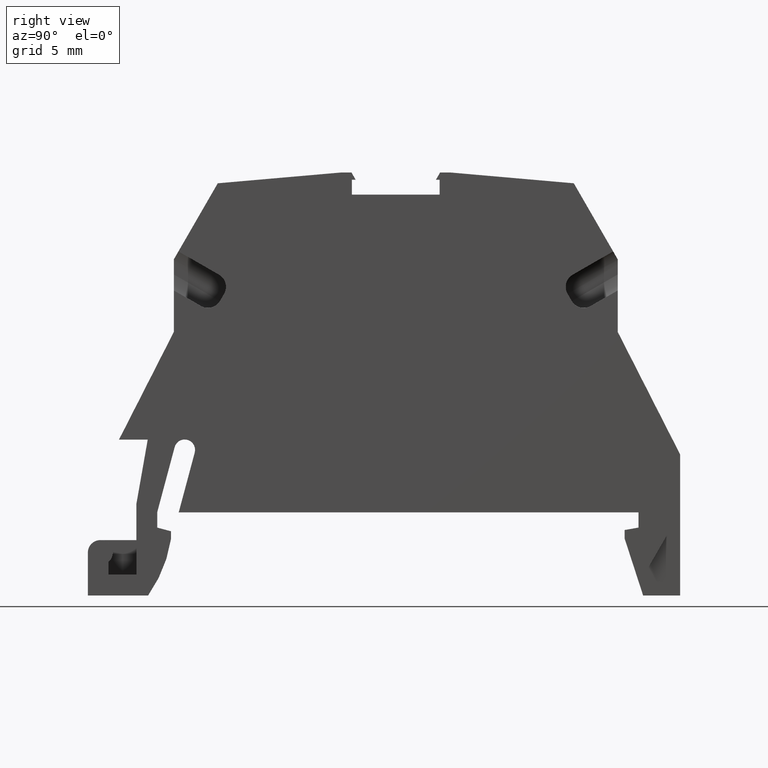
[diagram: clean part render]
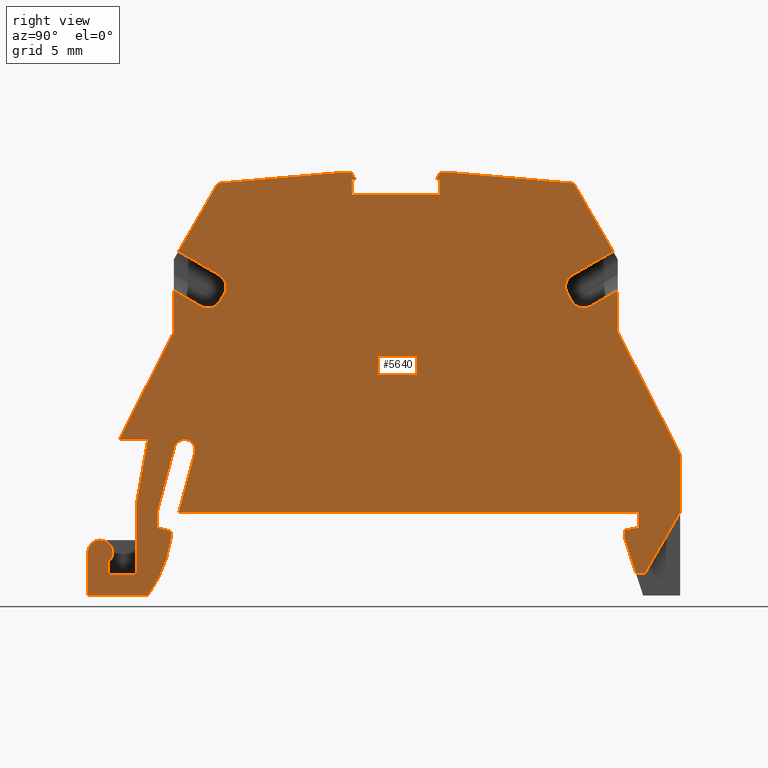
[diagram: same view with one face highlighted and labeled with its STEP entity id]
A machine part, right view. The second image highlights one B-rep face of the part: STEP entity #5640.
In plain terms, the highlighted planar face has unit normal (-1, 0, -0).
Its self-contained STEP definition (entity closure, byte-faithful):
#620=CARTESIAN_POINT('',(70.3110332415993,137.189784677558,
9.22499999999886));
#630=DIRECTION('',(0.984807753012208,0.17364817766693,
4.84387482353758E-13));
#640=VECTOR('',#630,1.);
#650=LINE('',#620,#640);
#660=CARTESIAN_POINT('',(81.2869033162164,139.125126708464,
9.22500000000426));
#670=VERTEX_POINT('',#660);
#680=CARTESIAN_POINT('',(85.9288839072414,139.943633130587,
9.22500000000655));
#690=VERTEX_POINT('',#680);
#700=EDGE_CURVE('',#670,#690,#650,.T.);
#1590=CARTESIAN_POINT('',(107.308864827748,141.583137130607,
9.22500000001767));
#1600=DIRECTION('',(-5.03237389910914E-13,2.85631559954056E-25,1.));
#1610=DIRECTION('',(2.5507373990763E-13,-1.,4.13994203059987E-25));
#1620=AXIS2_PLACEMENT_3D('',#1590,#1600,#1610);
#1630=PLANE('',#1620);
#1640=CARTESIAN_POINT('',(81.2869033162158,141.196541457125,
9.22500000000424));
#1650=DIRECTION('',(2.54685161849011E-13,-1.,9.71445146589593E-15));
#1660=VECTOR('',#1650,1.);
#1670=LINE('',#1640,#1660);
#1680=CARTESIAN_POINT('',(81.2869033162158,141.196541457125,
9.22500000000424));
#1690=VERTEX_POINT('',#1680);
#1700=EDGE_CURVE('',#1690,#670,#1670,.T.);
#1710=ORIENTED_EDGE('',*,*,#1700,.T.);
#1720=CARTESIAN_POINT('',(70.8468876131945,135.877087763314,
9.22499999999932));
#1730=DIRECTION('',(-0.891006524188349,-0.453990499739584,
-4.4838779762601E-13));
#1740=VECTOR('',#1730,1.);
#1750=LINE('',#1720,#1740);
#1760=CARTESIAN_POINT('',(73.5288839072462,137.243633130583,
9.22500000000045));
#1770=VERTEX_POINT('',#1760);
#1780=EDGE_CURVE('',#1690,#1770,#1750,.T.);
#1790=ORIENTED_EDGE('',*,*,#1780,.F.);
#1800=CARTESIAN_POINT('',(70.2799438227505,137.243633130582,
9.22499999999885));
#1810=DIRECTION('',(-1.,-1.94233518158171E-13,-4.93578479058867E-13));
#1820=VECTOR('',#1810,1.);
#1830=LINE('',#1800,#1820);
#1840=CARTESIAN_POINT('',(70.5370254785312,137.243633130585,
9.22499999999897));
#1850=VERTEX_POINT('',#1840);
#1860=EDGE_CURVE('',#1770,#1850,#1830,.T.);
#1870=ORIENTED_EDGE('',*,*,#1860,.F.);
#1880=CARTESIAN_POINT('',(79.0646726767555,122.473314914267,
9.22500000000333));
#1890=DIRECTION('',(-0.500000000000727,0.866025403784019,
-2.55202725495088E-13));
#1900=VECTOR('',#1890,1.);
#1910=LINE('',#1880,#1900);
#1920=CARTESIAN_POINT('',(71.6664964366499,135.287332045452,
9.22499999999943));
#1930=VERTEX_POINT('',#1920);
#1940=EDGE_CURVE('',#1930,#1850,#1910,.T.);
#1950=ORIENTED_EDGE('',*,*,#1940,.T.);
#1960=CARTESIAN_POINT('',(70.8004710328659,134.787332045451,
9.22499999999913));
#1970=DIRECTION('',(-5.25524068706296E-13,3.14582771914244E-13,1.));
#1980=DIRECTION('',(1.41808786935371E-12,-1.,3.1458277191499E-13));
#1990=AXIS2_PLACEMENT_3D('',#1960,#1970,#1980);
#2000=CIRCLE('',#1990,1.);
#2010=CARTESIAN_POINT('',(71.3004710328672,133.921306641668,
9.22499999999938));
#2020=VERTEX_POINT('',#2010);
#2030=EDGE_CURVE('',#2020,#1930,#2000,.T.);
#2040=ORIENTED_EDGE('',*,*,#2030,.T.);
#2050=CARTESIAN_POINT('',(71.9736851948147,134.309987019291,
9.22499999999971));
#2060=DIRECTION('',(0.866025403784127,0.50000000000054,
4.22595183855232E-13));
#2070=VECTOR('',#2060,1.);
#2080=LINE('',#2050,#2070);
#2090=CARTESIAN_POINT('',(70.7808557905968,133.621306641667,
9.22499999999941));
#2100=VERTEX_POINT('',#2090);
#2110=EDGE_CURVE('',#2100,#2020,#2080,.T.);
#2120=ORIENTED_EDGE('',*,*,#2110,.T.);
#2130=CARTESIAN_POINT('',(70.2808557905961,134.487332045451,
9.22499999999888));
#2140=DIRECTION('',(5.25524068706296E-13,-3.14582771914244E-13,-1.));
#2150=DIRECTION('',(0.866025403784544,-0.499999999999817,
6.12408579756932E-13));
#2160=AXIS2_PLACEMENT_3D('',#2130,#2140,#2150);
#2170=CIRCLE('',#2160,1.);
#2180=CARTESIAN_POINT('',(69.414830386812,133.987332045451,
9.22499999999858));
#2190=VERTEX_POINT('',#2180);
#2200=EDGE_CURVE('',#2100,#2190,#2170,.T.);
#2210=ORIENTED_EDGE('',*,*,#2200,.F.);
#2220=CARTESIAN_POINT('',(76.813006626917,121.173314914265,
9.22500000000223));
#2230=DIRECTION('',(0.500000000000727,-0.866025403784019,
2.55202725495088E-13));
#2240=VECTOR('',#2230,1.);
#2250=LINE('',#2220,#2240);
#2260=CARTESIAN_POINT('',(67.7248303868096,136.914497910241,
9.22499999999759));
#2270=VERTEX_POINT('',#2260);
#2280=EDGE_CURVE('',#2270,#2190,#2250,.T.);
#2290=ORIENTED_EDGE('',*,*,#2280,.T.);
#2300=CARTESIAN_POINT('',(69.7836851948122,138.103178287864,
9.22499999999859));
#2310=DIRECTION('',(-0.866025403783959,-0.500000000000831,
-4.22595183855146E-13));
#2320=VECTOR('',#2310,1.);
#2330=LINE('',#2300,#2320);
#2340=CARTESIAN_POINT('',(62.8104688544793,134.077189956647,
9.22499999999528));
#2350=VERTEX_POINT('',#2340);
#2360=EDGE_CURVE('',#2270,#2350,#2330,.T.);
#2370=ORIENTED_EDGE('',*,*,#2360,.F.);
#2380=CARTESIAN_POINT('',(60.876550100461,111.97239744877,
9.22499999999445));
#2390=DIRECTION('',(0.0871557427470437,0.996194698091799,
3.32848158768877E-14));
#2400=VECTOR('',#2390,1.);
#2410=LINE('',#2380,#2400);
#2420=CARTESIAN_POINT('',(62.0288839072392,125.143633130578,
9.22499999999489));
#2430=VERTEX_POINT('',#2420);
#2440=EDGE_CURVE('',#2430,#2350,#2410,.T.);
#2450=ORIENTED_EDGE('',*,*,#2440,.T.);
#2460=CARTESIAN_POINT('',(62.0288839072469,112.637697682315,
9.22499999999502));
#2470=DIRECTION('',(-6.16895423632968E-13,1.,-9.74220704169851E-15));
#2480=VECTOR('',#2470,1.);
#2490=LINE('',#2460,#2480);
#2500=CARTESIAN_POINT('',(62.0288839072396,124.439821152117,
9.22499999999489));
#2510=VERTEX_POINT('',#2500);
#2520=EDGE_CURVE('',#2510,#2430,#2490,.T.);
#2530=ORIENTED_EDGE('',*,*,#2520,.T.);
#2540=CARTESIAN_POINT('',(72.249822650771,118.53875941727,9.225));
#2550=DIRECTION('',(0.866025403788162,-0.499999999993551,
4.32320340272719E-13));
#2560=VECTOR('',#2550,1.);
#2570=LINE('',#2540,#2560);
#2580=CARTESIAN_POINT('',(62.5588839072429,124.13382550945,
9.22499999999516));
#2590=VERTEX_POINT('',#2580);
#2600=EDGE_CURVE('',#2510,#2590,#2570,.T.);
#2610=ORIENTED_EDGE('',*,*,#2600,.F.);
#2620=CARTESIAN_POINT('',(62.5588839072533,112.94369332499,
9.22499999999527));
#2630=DIRECTION('',(-9.29034627006331E-13,1.,-9.71445146624383E-15));
#2640=VECTOR('',#2630,1.);
#2650=LINE('',#2620,#2640);
#2660=CARTESIAN_POINT('',(62.5588839072426,124.406133130583,
9.22499999999516));
#2670=VERTEX_POINT('',#2660);
#2680=EDGE_CURVE('',#2590,#2670,#2650,.T.);
#2690=ORIENTED_EDGE('',*,*,#2680,.F.);
#2700=CARTESIAN_POINT('',(77.6916779034818,124.406133130589,
9.22500000000263));
#2710=DIRECTION('',(1.,4.35651514862911E-13,4.93578479058864E-13));
#2720=VECTOR('',#2710,1.);
#2730=LINE('',#2700,#2720);
#2740=CARTESIAN_POINT('',(63.6288839072423,124.406133130583,
9.22499999999569));
#2750=VERTEX_POINT('',#2740);
#2760=EDGE_CURVE('',#2670,#2750,#2730,.T.);
#2770=ORIENTED_EDGE('',*,*,#2760,.F.);
#2780=CARTESIAN_POINT('',(63.628883907245,113.561458113019,
9.2249999999958));
#2790=DIRECTION('',(-2.55129251058861E-13,1.,-9.76996261712739E-15));
#2800=VECTOR('',#2790,1.);
#2810=LINE('',#2780,#2800);
#2820=CARTESIAN_POINT('',(63.6288839072439,118.081133130579,
9.22499999999575));
#2830=VERTEX_POINT('',#2820);
#2840=EDGE_CURVE('',#2830,#2750,#2810,.T.);
#2850=ORIENTED_EDGE('',*,*,#2840,.T.);
#2860=CARTESIAN_POINT('',(81.3434183561194,118.081133130578,
9.22500000000449));
#2870=DIRECTION('',(1.,-4.70179450928754E-14,4.93606234634485E-13));
#2880=VECTOR('',#2870,1.);
#2890=LINE('',#2860,#2880);
#2900=CARTESIAN_POINT('',(62.5588839072439,118.081133130579,
9.22499999999522));
#2910=VERTEX_POINT('',#2900);
#2920=EDGE_CURVE('',#2910,#2830,#2890,.T.);
#2930=ORIENTED_EDGE('',*,*,#2920,.T.);
#2940=CARTESIAN_POINT('',(62.5588839072411,112.943693324983,
9.22499999999527));
#2950=DIRECTION('',(-5.40234523782601E-13,-1.,9.76996261671713E-15));
#2960=VECTOR('',#2950,1.);
#2970=LINE('',#2940,#2960);
#2980=CARTESIAN_POINT('',(62.558883907244,118.353440751711,
9.22499999999522));
#2990=VERTEX_POINT('',#2980);
#3000=EDGE_CURVE('',#2990,#2910,#2970,.T.);
#3010=ORIENTED_EDGE('',*,*,#3000,.T.);
#3020=CARTESIAN_POINT('',(76.5293720851781,126.419305861821,
9.22500000000204));
#3030=DIRECTION('',(0.866025403787968,0.499999999993887,
4.22595183857192E-13));
#3040=VECTOR('',#3030,1.);
#3050=LINE('',#3020,#3040);
#3060=CARTESIAN_POINT('',(62.0288839072409,118.047445109044,
9.22499999999489));
#3070=VERTEX_POINT('',#3060);
#3080=EDGE_CURVE('',#3070,#2990,#3050,.T.);
#3090=ORIENTED_EDGE('',*,*,#3080,.T.);
#3100=CARTESIAN_POINT('',(62.0288839072396,112.637697682311,
9.22499999999501));
#3110=DIRECTION('',(-2.28261853862932E-13,-1.,9.76996261687803E-15));
#3120=VECTOR('',#3110,1.);
#3130=LINE('',#3100,#3120);
#3140=CARTESIAN_POINT('',(62.0288839072407,117.343633130581,
9.22499999999489));
#3150=VERTEX_POINT('',#3140);
#3160=EDGE_CURVE('',#3070,#3150,#3130,.T.);
#3170=ORIENTED_EDGE('',*,*,#3160,.F.);
#3180=CARTESIAN_POINT('',(62.4208034268919,112.863972522483,
9.22499999999521));
#3190=DIRECTION('',(-0.0871557427474359,0.996194698091765,
-5.26952971184505E-14));
#3200=VECTOR('',#3190,1.);
#3210=LINE('',#3180,#3200);
#3220=CARTESIAN_POINT('',(62.8104688544835,108.410076304523,
9.22499999999528));
#3230=VERTEX_POINT('',#3220);
#3240=EDGE_CURVE('',#3230,#3150,#3210,.T.);
#3250=ORIENTED_EDGE('',*,*,#3240,.T.);
#3260=CARTESIAN_POINT('',(58.7584488701172,110.749511133258,
9.22499999999342));
#3270=DIRECTION('',(-0.866025403784484,0.499999999999921,
-4.32292584695268E-13));
#3280=VECTOR('',#3270,1.);
#3290=LINE('',#3260,#3280);
#3300=CARTESIAN_POINT('',(67.7248303868225,105.572768350932,
9.22499999999789));
#3310=VERTEX_POINT('',#3300);
#3320=EDGE_CURVE('',#3310,#3230,#3290,.T.);
#3330=ORIENTED_EDGE('',*,*,#3320,.T.);
#3340=CARTESIAN_POINT('',(78.1449782577973,123.620993885827,
9.22500000000286));
#3350=DIRECTION('',(0.500000000000286,0.866025403784274,
2.38362399988592E-13));
#3360=VECTOR('',#3350,1.);
#3370=LINE('',#3340,#3360);
#3380=CARTESIAN_POINT('',(69.4148303868185,108.499934215714,
9.22499999999882));
#3390=VERTEX_POINT('',#3380);
#3400=EDGE_CURVE('',#3310,#3390,#3370,.T.);
#3410=ORIENTED_EDGE('',*,*,#3400,.F.);
#3420=CARTESIAN_POINT('',(70.2808557906028,107.999934215714,
9.22499999999913));
#3430=DIRECTION('',(-5.25524068706141E-13,-2.9515386898272E-13,1.));
#3440=DIRECTION('',(0.866025403784289,0.500000000000259,
6.02694128291035E-13));
#3450=AXIS2_PLACEMENT_3D('',#3420,#3430,#3440);
#3460=CIRCLE('',#3450,1.);
#3470=CARTESIAN_POINT('',(70.7808557906031,108.865959619498,
9.22499999999965));
#3480=VERTEX_POINT('',#3470);
#3490=EDGE_CURVE('',#3480,#3390,#3460,.T.);
#3500=ORIENTED_EDGE('',*,*,#3490,.T.);
#3510=CARTESIAN_POINT('',(63.1384488701047,113.278305312306,
9.22499999999555));
#3520=DIRECTION('',(0.866025403784382,-0.500000000000098,
4.32306462483034E-13));
#3530=VECTOR('',#3520,1.);
#3540=LINE('',#3510,#3530);
#3550=CARTESIAN_POINT('',(71.3004710328739,108.565959619498,
9.22499999999923));
#3560=VERTEX_POINT('',#3550);
#3570=EDGE_CURVE('',#3480,#3560,#3540,.T.);
#3580=ORIENTED_EDGE('',*,*,#3570,.F.);
#3590=CARTESIAN_POINT('',(70.8004710328728,107.699934215714,
9.22499999999939));
#3600=DIRECTION('',(5.25524068706141E-13,2.9515386898272E-13,-1.));
#3610=DIRECTION('',(9.08217945294609E-13,1.,2.95153868983198E-13));
#3620=AXIS2_PLACEMENT_3D('',#3590,#3600,#3610);
#3630=CIRCLE('',#3620,1.);
#3640=CARTESIAN_POINT('',(71.6664964366571,107.199934215714,
9.2249999999997));
#3650=VERTEX_POINT('',#3640);
#3660=EDGE_CURVE('',#3560,#3650,#3630,.T.);
#3670=ORIENTED_EDGE('',*,*,#3660,.F.);
#3680=CARTESIAN_POINT('',(79.6460889576914,121.02099388583,
9.22500000000363));
#3690=DIRECTION('',(-0.500000000000286,-0.866025403784274,
-2.38334644412977E-13));
#3700=VECTOR('',#3690,1.);
#3710=LINE('',#3680,#3700);
#3720=CARTESIAN_POINT('',(70.5370254785351,105.243633130573,
9.22499999999929));
#3730=VERTEX_POINT('',#3720);
#3740=EDGE_CURVE('',#3650,#3730,#3710,.T.);
#3750=ORIENTED_EDGE('',*,*,#3740,.F.);
#3760=CARTESIAN_POINT('',(88.7551524368502,105.243633130586,
9.22500000000828));
#3770=DIRECTION('',(1.,1.94400051611865E-13,4.93578479058867E-13));
#3780=VECTOR('',#3770,1.);
#3790=LINE('',#3760,#3780);
#3800=CARTESIAN_POINT('',(73.5288839072413,105.243633130583,
9.22500000000076));
#3810=VERTEX_POINT('',#3800);
#3820=EDGE_CURVE('',#3730,#3810,#3790,.T.);
#3830=ORIENTED_EDGE('',*,*,#3820,.F.);
#3840=CARTESIAN_POINT('',(60.1285176052663,112.071460793985,
9.22499999999393));
#3850=DIRECTION('',(-0.891006524188415,0.453990499739456,
-4.48387797626303E-13));
#3860=VECTOR('',#3850,1.);
#3870=LINE('',#3840,#3860);
#3880=CARTESIAN_POINT('',(82.3606311820121,100.743633130585,
9.22500000000517));
#3890=VERTEX_POINT('',#3880);
#3900=EDGE_CURVE('',#3890,#3810,#3870,.T.);
#3910=ORIENTED_EDGE('',*,*,#3900,.T.);
#3920=CARTESIAN_POINT('',(91.1264337289575,100.743633130585,
9.22500000000953));
#3930=DIRECTION('',(1.,-5.55111512312578E-17,5.03237389910914E-13));
#3940=VECTOR('',#3930,1.);
#3950=LINE('',#3920,#3940);
#3960=CARTESIAN_POINT('',(86.5288839072512,100.743633130585,
9.22500000000722));
#3970=VERTEX_POINT('',#3960);
#3980=EDGE_CURVE('',#3890,#3970,#3950,.T.);
#3990=ORIENTED_EDGE('',*,*,#3980,.F.);
#4000=CARTESIAN_POINT('',(90.1471424629674,102.832635681726,
9.22500000000899));
#4010=DIRECTION('',(0.866025403784281,0.500000000000273,
4.2259518385531E-13));
#4020=VECTOR('',#4010,1.);
#4030=LINE('',#4000,#4020);
#4040=CARTESIAN_POINT('',(90.9288839072504,103.28397431502,
9.22500000000937));
#4050=VERTEX_POINT('',#4040);
#4060=EDGE_CURVE('',#3970,#4050,#4030,.T.);
#4070=ORIENTED_EDGE('',*,*,#4060,.F.);
#4080=CARTESIAN_POINT('',(90.9288839072422,129.323120461923,
9.22500000000912));
#4090=DIRECTION('',(-3.14470671725076E-13,1.,-9.74220704154235E-15));
#4100=VECTOR('',#4090,1.);
#4110=LINE('',#4080,#4100);
#4120=CARTESIAN_POINT('',(90.9288839072502,103.93133389,9.22500000000937
));
#4130=VERTEX_POINT('',#4120);
#4140=EDGE_CURVE('',#4050,#4130,#4110,.T.);
#4150=ORIENTED_EDGE('',*,*,#4140,.F.);
#4160=CARTESIAN_POINT('',(62.3262953087769,113.224878288892,
9.22499999999503));
#4170=DIRECTION('',(-0.95105651629514,0.309016994374991,
-4.78607198918221E-13));
#4180=VECTOR('',#4170,1.);
#4190=LINE('',#4160,#4180);
#4200=CARTESIAN_POINT('',(88.4288839072414,104.743633130585,
9.22500000000812));
#4210=VERTEX_POINT('',#4200);
#4220=EDGE_CURVE('',#4130,#4210,#4190,.T.);
#4230=ORIENTED_EDGE('',*,*,#4220,.F.);
#4240=CARTESIAN_POINT('',(89.0170326521826,104.743633130585,
9.22500000000847));
#4250=DIRECTION('',(1.,-1.16018306073329E-14,5.03237389910914E-13));
#4260=VECTOR('',#4250,1.);
#4270=LINE('',#4240,#4260);
#4280=CARTESIAN_POINT('',(87.8052108879499,104.743633130585,
9.22500000000781));
#4290=VERTEX_POINT('',#4280);
#4300=EDGE_CURVE('',#4290,#4210,#4270,.T.);
#4310=ORIENTED_EDGE('',*,*,#4300,.T.);
#4320=CARTESIAN_POINT('',(92.3579819051931,130.563680629556,
9.22500000001015));
#4330=DIRECTION('',(0.173648177666953,0.984807753012204,
8.73862556916224E-14));
#4340=VECTOR('',#4330,1.);
#4350=LINE('',#4320,#4340);
#4360=CARTESIAN_POINT('',(87.6288839072414,103.743633130585,
9.22500000000774));
#4370=VERTEX_POINT('',#4360);
#4380=EDGE_CURVE('',#4370,#4290,#4350,.T.);
#4390=ORIENTED_EDGE('',*,*,#4380,.T.);
#4400=CARTESIAN_POINT('',(89.5943829213724,103.743633130585,
9.22500000000876));
#4410=DIRECTION('',(1.,-5.55111512312578E-17,5.03237389910914E-13));
#4420=VECTOR('',#4410,1.);
#4430=LINE('',#4400,#4420);
#4440=CARTESIAN_POINT('',(86.5288839072415,103.743633130585,
9.22500000000719));
#4450=VERTEX_POINT('',#4440);
#4460=EDGE_CURVE('',#4450,#4370,#4430,.T.);
#4470=ORIENTED_EDGE('',*,*,#4460,.T.);
#4480=CARTESIAN_POINT('',(86.5288839072415,127.198249331305,
9.22500000000722));
#4490=DIRECTION('',(5.55111512312578E-17,1.,-2.85656000111391E-25));
#4500=VECTOR('',#4490,1.);
#4510=LINE('',#4480,#4500);
#4520=CARTESIAN_POINT('',(86.5288839072415,136.89071885997,
9.22500000000687));
#4530=VERTEX_POINT('',#4520);
#4540=EDGE_CURVE('',#4450,#4530,#4510,.T.);
#4550=ORIENTED_EDGE('',*,*,#4540,.F.);
#4560=CARTESIAN_POINT('',(72.610141064059,133.161202955483,
9.22500000000021));
#4570=DIRECTION('',(0.965925826289069,0.258819045102521,
4.86089991669179E-13));
#4580=VECTOR('',#4570,1.);
#4590=LINE('',#4560,#4580);
#4600=CARTESIAN_POINT('',(82.2229981910641,135.73696025962,
9.22500000000475));
#4610=VERTEX_POINT('',#4600);
#4620=EDGE_CURVE('',#4610,#4530,#4590,.T.);
#4630=ORIENTED_EDGE('',*,*,#4620,.T.);
#4640=CARTESIAN_POINT('',(82.0288839072372,136.461404629337,
9.22500000000495));
#4650=DIRECTION('',(-5.03237389910914E-13,2.85605513013457E-25,1.));
#4660=DIRECTION('',(-0.258819045102662,0.965925826289031,
-1.30247420716975E-13));
#4670=AXIS2_PLACEMENT_3D('',#4640,#4650,#4660);
#4680=CIRCLE('',#4670,0.750000000000012);
#4690=CARTESIAN_POINT('',(81.8347696234103,137.185848999053,
9.22500000000455));
#4700=VERTEX_POINT('',#4690);
#4710=EDGE_CURVE('',#4700,#4610,#4680,.T.);
#4720=ORIENTED_EDGE('',*,*,#4710,.T.);
#4730=CARTESIAN_POINT('',(71.6604788479944,134.459656002221,
9.22499999999973));
#4740=DIRECTION('',(0.965925826289069,0.258819045102521,
4.86089991669179E-13));
#4750=VECTOR('',#4740,1.);
#4760=LINE('',#4730,#4750);
#4770=CARTESIAN_POINT('',(86.5288839072414,138.443633130585,
9.22500000000686));
#4780=VERTEX_POINT('',#4770);
#4790=EDGE_CURVE('',#4700,#4780,#4760,.T.);
#4800=ORIENTED_EDGE('',*,*,#4790,.F.);
#4810=CARTESIAN_POINT('',(69.3603285804876,138.443633130585,
9.22499999999858));
#4820=DIRECTION('',(-1.,5.55111512312578E-17,-5.03237389910914E-13));
#4830=VECTOR('',#4820,1.);
#4840=LINE('',#4810,#4830);
#4850=CARTESIAN_POINT('',(87.6288839072422,138.443633130585,
9.2250000000074));
#4860=VERTEX_POINT('',#4850);
#4870=EDGE_CURVE('',#4860,#4780,#4840,.T.);
#4880=ORIENTED_EDGE('',*,*,#4870,.T.);
#4890=CARTESIAN_POINT('',(90.0642173242068,129.354845085103,
9.22500000000899));
#4900=DIRECTION('',(0.258819045102521,-0.965925826289069,
1.30247420716904E-13));
#4910=VECTOR('',#4900,1.);
#4920=LINE('',#4890,#4910);
#4930=CARTESIAN_POINT('',(87.8968330996725,137.443633130588,
9.22500000000754));
#4940=VERTEX_POINT('',#4930);
#4950=EDGE_CURVE('',#4860,#4940,#4920,.T.);
#4960=ORIENTED_EDGE('',*,*,#4950,.F.);
#4970=CARTESIAN_POINT('',(69.9376788496757,137.443633130588,
9.22499999999887));
#4980=DIRECTION('',(1.,-5.55111512312578E-17,5.03237389910914E-13));
#4990=VECTOR('',#4980,1.);
#5000=LINE('',#4970,#4990);
#5010=CARTESIAN_POINT('',(88.4288839072416,137.443633130588,
9.22500000000773));
#5020=VERTEX_POINT('',#5010);
#5030=EDGE_CURVE('',#4940,#5020,#5000,.T.);
#5040=ORIENTED_EDGE('',*,*,#5030,.F.);
#5050=CARTESIAN_POINT('',(87.0134839072414,146.83760155932,
9.22500000000746));
#5060=DIRECTION('',(5.03237389910914E-13,-2.85605513013457E-25,-1.));
#5070=DIRECTION('',(-5.55111512312578E-17,-1.,2.85656000111391E-25));
#5080=AXIS2_PLACEMENT_3D('',#5050,#5060,#5070);
#5090=CIRCLE('',#5080,9.5);
#5100=CARTESIAN_POINT('',(92.5288839072414,139.102592649176,
9.22500000000979));
#5110=VERTEX_POINT('',#5100);
#5120=EDGE_CURVE('',#5110,#5020,#5090,.T.);
#5130=ORIENTED_EDGE('',*,*,#5120,.T.);
#5140=CARTESIAN_POINT('',(92.5288839072414,130.777821000281,
9.22500000001023));
#5150=DIRECTION('',(4.05231403988182E-15,1.,-2.83535541998157E-25));
#5160=VECTOR('',#5150,1.);
#5170=LINE('',#5140,#5160);
#5180=CARTESIAN_POINT('',(92.5288839072414,143.443633130588,
9.22500000000977));
#5190=VERTEX_POINT('',#5180);
#5200=EDGE_CURVE('',#5110,#5190,#5170,.T.);
#5210=ORIENTED_EDGE('',*,*,#5200,.F.);
#5220=CARTESIAN_POINT('',(66.4735772345371,143.443633130588,
9.22499999999712));
#5230=DIRECTION('',(-1.,5.55111512312578E-17,-5.03237389910914E-13));
#5240=VECTOR('',#5230,1.);
#5250=LINE('',#5220,#5240);
#5260=CARTESIAN_POINT('',(89.4288839072415,143.443633130588,
9.22500000000824));
#5270=VERTEX_POINT('',#5260);
#5280=EDGE_CURVE('',#5190,#5270,#5250,.T.);
#5290=ORIENTED_EDGE('',*,*,#5280,.F.);
#5300=CARTESIAN_POINT('',(89.4288839072415,142.543633130589,
9.22500000000868));
#5310=DIRECTION('',(5.03237389910914E-13,-2.85605513013457E-25,-1.));
#5320=DIRECTION('',(-5.55111512312578E-17,-1.,2.85656000111391E-25));
#5330=AXIS2_PLACEMENT_3D('',#5300,#5310,#5320);
#5340=CIRCLE('',#5330,0.900000000000114);
#5350=CARTESIAN_POINT('',(90.0997043004883,141.943633130588,
9.22500000000879));
#5360=VERTEX_POINT('',#5350);
#5370=EDGE_CURVE('',#5360,#5270,#5340,.T.);
#5380=ORIENTED_EDGE('',*,*,#5370,.T.);
#5390=CARTESIAN_POINT('',(67.5663975575578,141.943633130576,
9.22499999999746));
#5400=DIRECTION('',(1.,5.4634075041804E-13,4.93606234634479E-13));
#5410=VECTOR('',#5400,1.);
#5420=LINE('',#5390,#5410);
#5430=CARTESIAN_POINT('',(91.0288839072382,141.943633130589,
9.22500000000904));
#5440=VERTEX_POINT('',#5430);
#5450=EDGE_CURVE('',#5360,#5440,#5420,.T.);
#5460=ORIENTED_EDGE('',*,*,#5450,.F.);
#5470=CARTESIAN_POINT('',(91.0288839072423,129.380855488842,
9.22500000000917));
#5480=DIRECTION('',(3.28570504137815E-13,-1.,9.7699626171652E-15));
#5490=VECTOR('',#5480,1.);
#5500=LINE('',#5470,#5490);
#5510=CARTESIAN_POINT('',(91.0288839072388,139.943633130589,
9.22500000000906));
#5520=VERTEX_POINT('',#5510);
#5530=EDGE_CURVE('',#5440,#5520,#5500,.T.);
#5540=ORIENTED_EDGE('',*,*,#5530,.F.);
#5550=CARTESIAN_POINT('',(68.494303176706,139.94363313058,
9.22499999999814));
#5560=DIRECTION('',(1.,3.81472631261204E-13,5.03237389910913E-13));
#5570=VECTOR('',#5560,1.);
#5580=LINE('',#5550,#5570);
#5590=EDGE_CURVE('',#690,#5520,#5580,.T.);
#5600=ORIENTED_EDGE('',*,*,#5590,.T.);
#5610=ORIENTED_EDGE('',*,*,#700,.T.);
#5620=EDGE_LOOP('',(#5610,#5600,#5540,#5460,#5380,#5290,#5210,#5130,
#5040,#4960,#4880,#4800,#4720,#4630,#4550,#4470,#4390,#4310,#4230,#4150,
#4070,#3990,#3910,#3830,#3750,#3670,#3580,#3500,#3410,#3330,#3250,#3170,
#3090,#3010,#2930,#2850,#2770,#2690,#2610,#2530,#2450,#2370,#2290,#2210,
#2120,#2040,#1950,#1870,#1790,#1710));
#5630=FACE_OUTER_BOUND('',#5620,.T.);
#5640=ADVANCED_FACE('',(#5630),#1630,.F.);